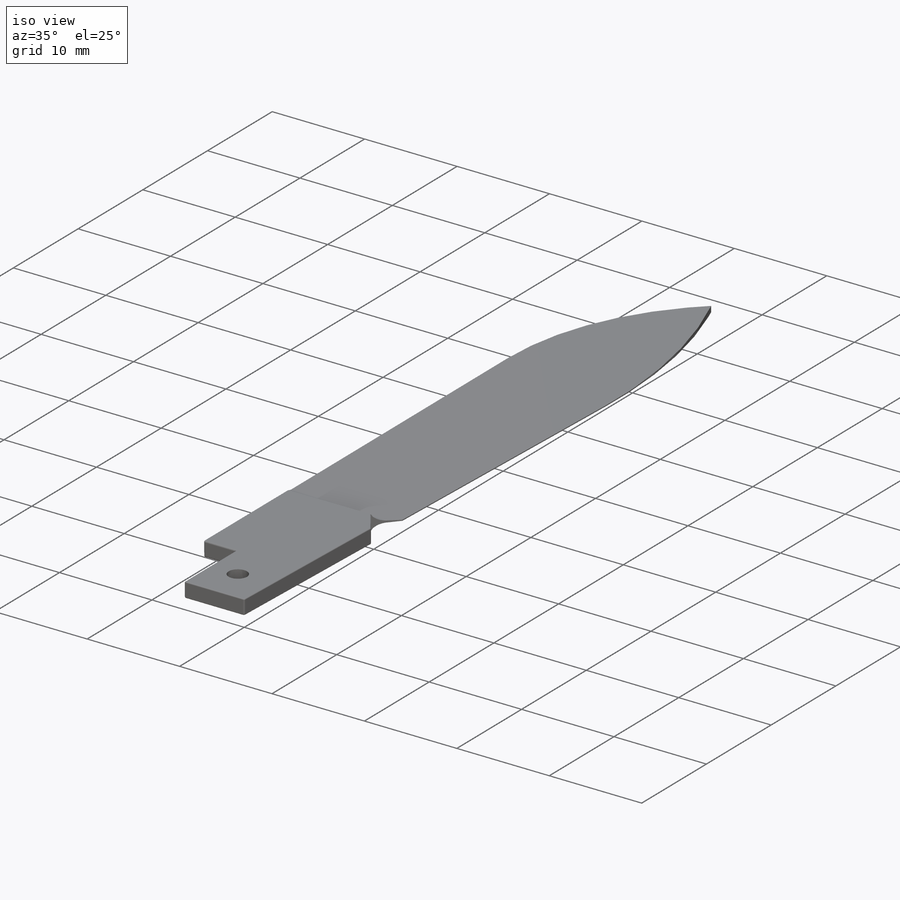
[diagram: iso view]
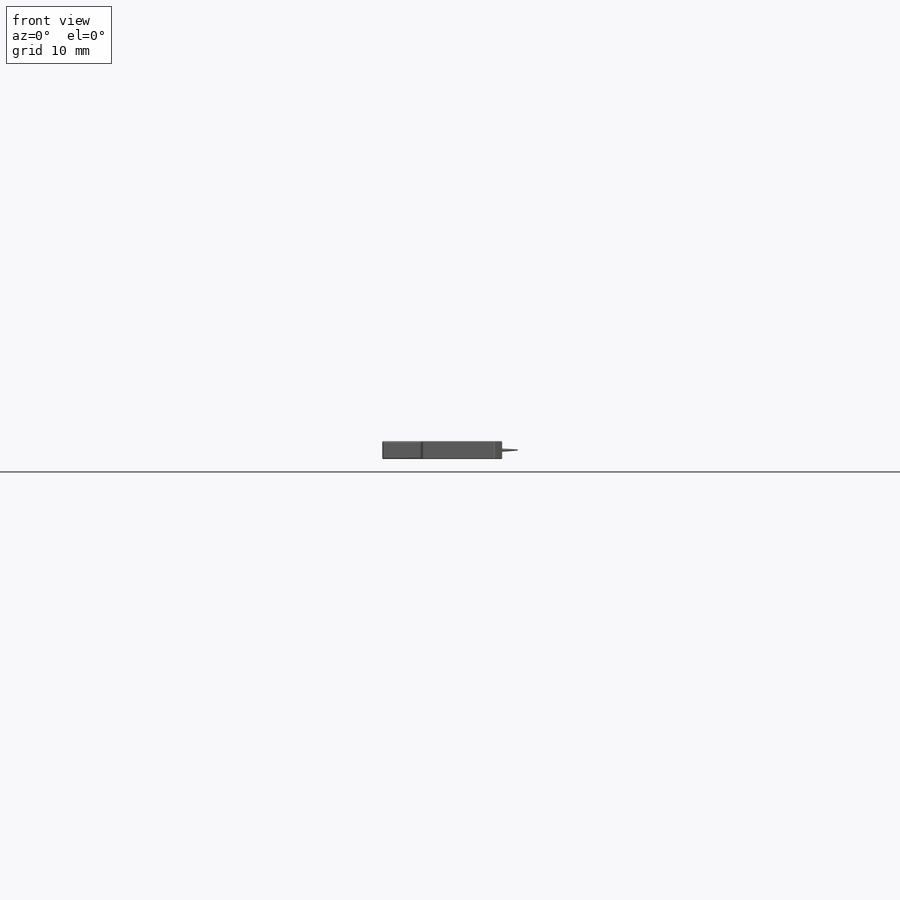
[diagram: front view]
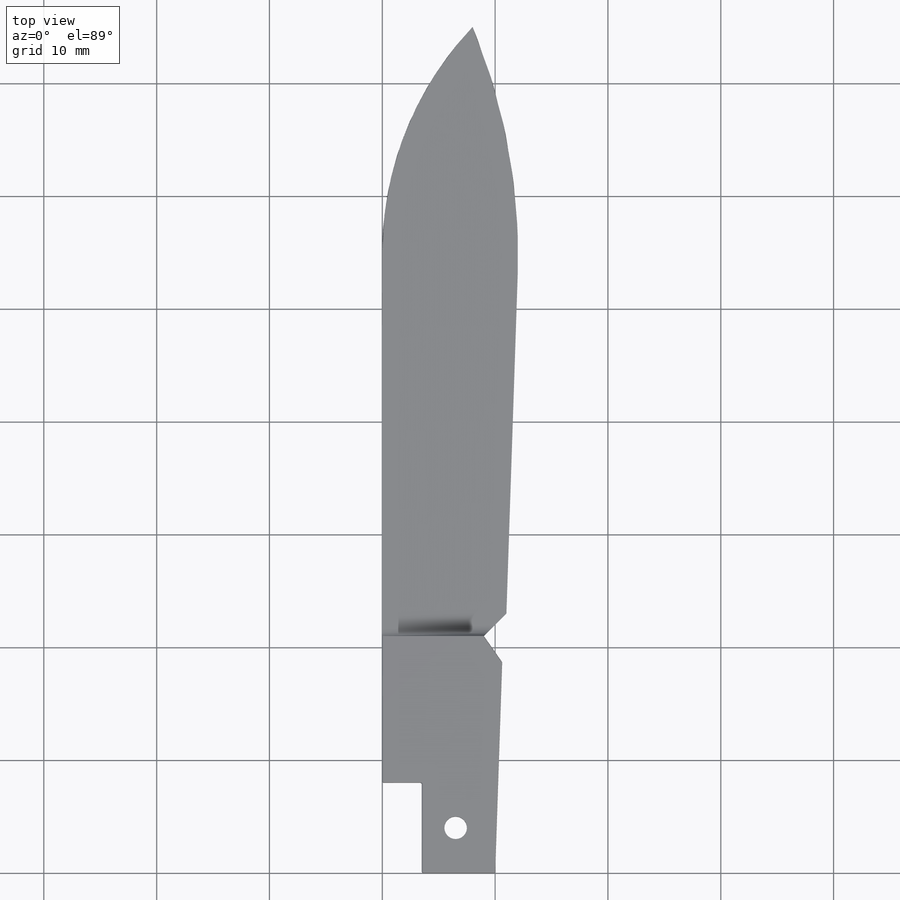
[diagram: top view]
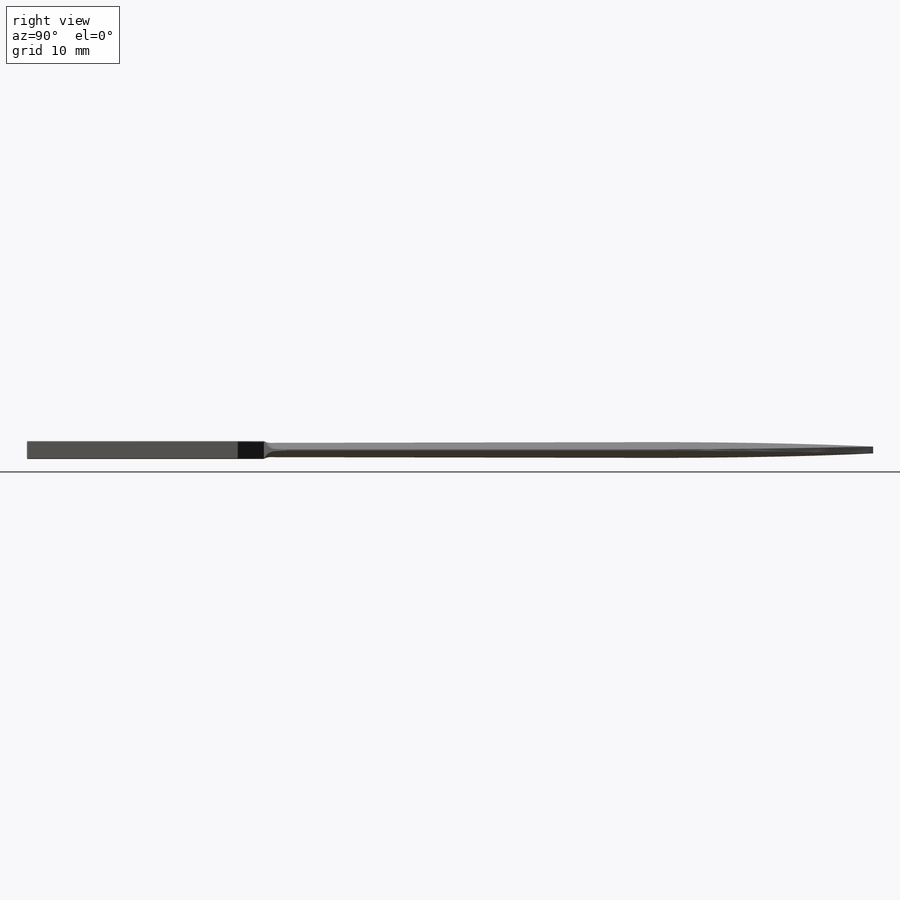
[diagram: right view]
SOLIDWORKS PART (.sldprt)
format: sldprt  version: not decoded by parser v0  size: 248,832 bytes
history: native  units: mm
features: fillet x4, sketch x2, extrude x2, material x1, chamfer x1 (+11 scaffold rows collapsed)
feature tree (21):
  scaffold x11  (default folders/planes/origin — collapsed)
  material  "Material <not specified>"
  sketch  "Sketch1"  dims[D13=2.0mm D1=75.0mm D2=12.0mm D3=54.0mm D4=10.0mm D5=9.0mm D6=8.0mm D7=20.0mm D8=22.0mm D9=30.0mm D10=1.0mm D11=8.0mm D12=3.5mm D14=4.0mm D15=3.0mm]
  extrude  "Boss-Extrude2"  Depth=1.6mm
  chamfer  "Chamfer2"  Distance=14mm
  extrude  "Boss-Extrude3"  [1 undecoded]
  sketch  "Sketch1<3>"  dims[D1=1.6mm]
  fillet  "Fillet1"  Radius=1mm
  fillet  "Fillet2"  Radius=0.1mm
  fillet  "Fillet3"  Radius=0.15mm
  fillet  "Fillet4"  Radius=0.15mm
decode coverage: 8 of 9 modeling features carry decoded parameters
note: 1 parameter value undecoded
note: suppression state not decoded; provenance and decode notes live in map.json
